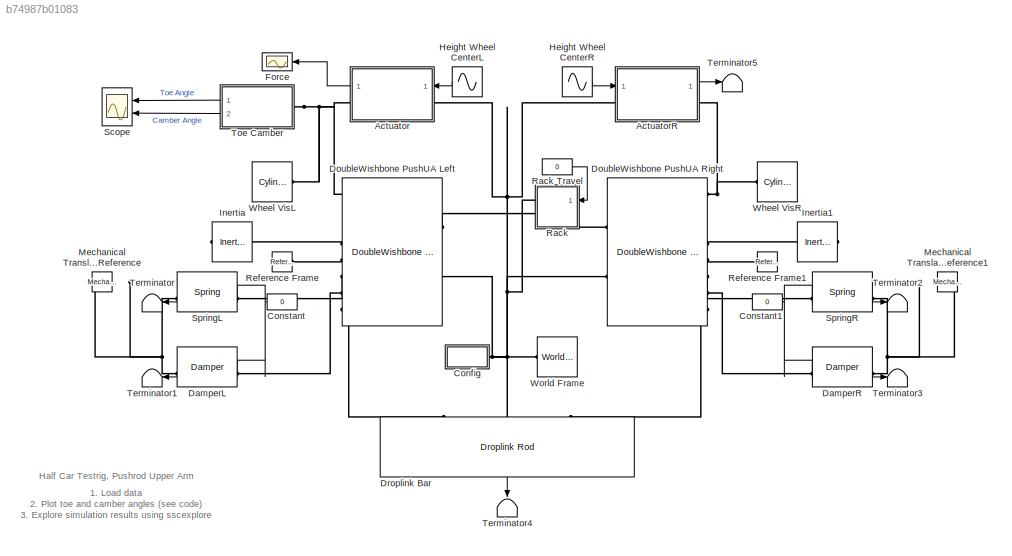
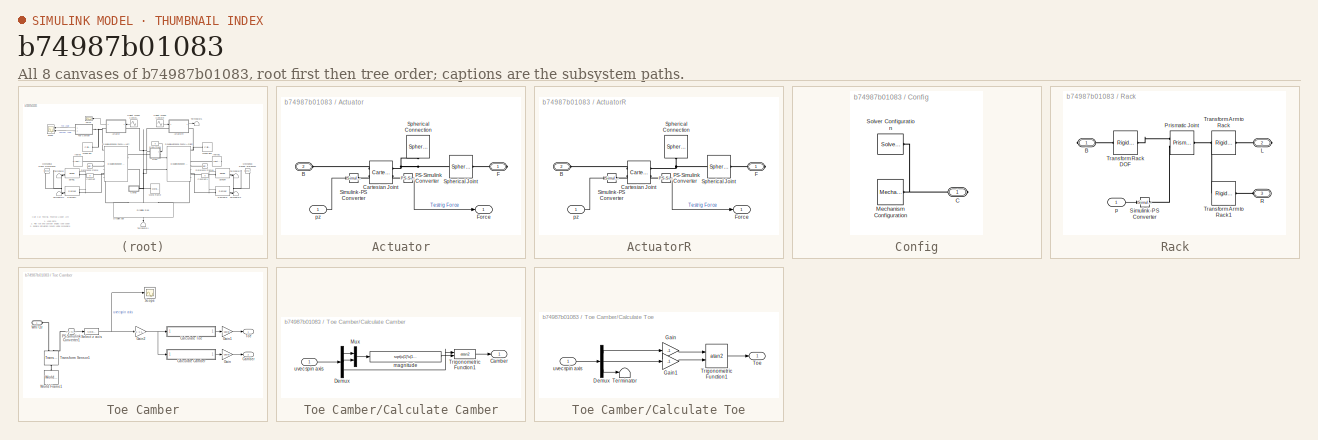
[diagram: thumbnail index - all 8 canvases of the model, root first then tree order]
MODEL slx_b74987b01083
KIND model
CONFIG AbsTol = 1e-3
CONFIG EnableMultiTasking = on
CONFIG FixedStep = auto
CONFIG MaxStep = auto
CONFIG MinStep = auto
CONFIG PostLoadFcn = Linkage = VDatabase.Linkage.DoubleWishbonePushUA_FSAE_Achilles_f;\nDamper = VDatabase.Damper.FSAE_Achilles_Linear_A1;\nSpring  = VDatabase.Spring.FSAE_Achilles_Linear_A1;\nAntiRollBar = VDatabase.AntiRollBar.DroplinkRod_FSAE_Achilles_f;\nInitLinkage = Init.Axle1;\n\nVisual = sm_car_param_visual('fsae');
CONFIG RelTol = 1e-3
CONFIG SampleTimeConstraint = Unconstrained
CONFIG SolverName = ode23t
CONFIG StartTime = 0.0
CONFIG StopTime = 10.0
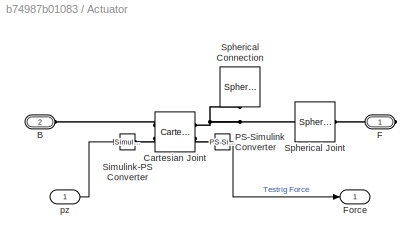
BLOCK [SubSystem] Actuator
  Ports = [1, 1, 0, 0, 0, 1, 1]
  RequestExecContextInheritance = off
BLOCK [PMIOPort] Actuator/B
  Port = 2
  Side = Left
BLOCK [Reference] Actuator/Cartesian Joint  REF=sm_lib/Joints/Cartesian
Joint
  Ports = [0, 0, 0, 0, 0, 2, 2]
  SourceBlock = sm_lib/Joints/Cartesian\nJoint
  SourceProductBaseCode = MS
  SourceType = Cartesian\nJoint
BLOCK [PMIOPort] Actuator/F
  Side = Right
BLOCK [Outport] Actuator/Force
  VectorParamsAs1DForOutWhenUnconnected = off
BLOCK [Reference] Actuator/PS-Simulink Converter  REF=nesl_utility/PS-Simulink
Converter
  Ports = [0, 1, 0, 0, 0, 1]
  SourceBlock = nesl_utility/PS-Simulink\nConverter
  SourceProductBaseCode = SS,PW,VE
  SourceType = PS-Simulink\nConverter
BLOCK [Reference] Actuator/Simulink-PS Converter  REF=nesl_utility/Simulink-PS
Converter
  Ports = [1, 0, 0, 0, 0, 0, 1]
  SourceBlock = nesl_utility/Simulink-PS\nConverter
  SourceProductBaseCode = SS,PW,VE
  SourceType = Simulink-PS\nConverter
BLOCK [Reference] Actuator/Spherical Connection  REF=sm_lib/Body Elements/Spherical Solid
  NameLocation = left
  Ports = [0, 0, 0, 0, 0, 0, 1]
  SourceBlock = sm_lib/Body Elements/Spherical Solid
  SourceProductBaseCode = MS
  SourceType = Spherical Solid
BLOCK [Reference] Actuator/Spherical Joint  REF=sm_lib/Joints/Spherical
Joint
  Ports = [0, 0, 0, 0, 0, 1, 1]
  SourceBlock = sm_lib/Joints/Spherical\nJoint
  SourceProductBaseCode = MS
  SourceType = Spherical\nJoint
BLOCK [Inport] Actuator/pz
BLOCK [SubSystem] ActuatorR
  Ports = [1, 1, 0, 0, 0, 1, 1]
  RequestExecContextInheritance = off
BLOCK [PMIOPort] ActuatorR/B
  Port = 2
  Side = Left
BLOCK [Reference] ActuatorR/Cartesian Joint  REF=sm_lib/Joints/Cartesian
Joint
  Ports = [0, 0, 0, 0, 0, 2, 2]
  SourceBlock = sm_lib/Joints/Cartesian\nJoint
  SourceProductBaseCode = MS
  SourceType = Cartesian\nJoint
BLOCK [PMIOPort] ActuatorR/F
  Side = Right
BLOCK [Outport] ActuatorR/Force
  VectorParamsAs1DForOutWhenUnconnected = off
BLOCK [Reference] ActuatorR/PS-Simulink Converter  REF=nesl_utility/PS-Simulink
Converter
  Ports = [0, 1, 0, 0, 0, 1]
  SourceBlock = nesl_utility/PS-Simulink\nConverter
  SourceProductBaseCode = SS,PW,VE
  SourceType = PS-Simulink\nConverter
BLOCK [Reference] ActuatorR/Simulink-PS Converter  REF=nesl_utility/Simulink-PS
Converter
  Ports = [1, 0, 0, 0, 0, 0, 1]
  SourceBlock = nesl_utility/Simulink-PS\nConverter
  SourceProductBaseCode = SS,PW,VE
  SourceType = Simulink-PS\nConverter
BLOCK [Reference] ActuatorR/Spherical Connection  REF=sm_lib/Body Elements/Spherical Solid
  NameLocation = left
  Ports = [0, 0, 0, 0, 0, 0, 1]
  SourceBlock = sm_lib/Body Elements/Spherical Solid
  SourceProductBaseCode = MS
  SourceType = Spherical Solid
BLOCK [Reference] ActuatorR/Spherical Joint  REF=sm_lib/Joints/Spherical
Joint
  Ports = [0, 0, 0, 0, 0, 1, 1]
  SourceBlock = sm_lib/Joints/Spherical\nJoint
  SourceProductBaseCode = MS
  SourceType = Spherical\nJoint
BLOCK [Inport] ActuatorR/pz
BLOCK [SubSystem] Config
  Ports = [0, 0, 0, 0, 0, 0, 1]
  RequestExecContextInheritance = off
BLOCK [PMIOPort] Config/C
  Side = Right
BLOCK [Reference] Config/Mechanism Configuration  REF=sm_lib/Utilities/Mechanism
Configuration
  Ports = [0, 0, 0, 0, 0, 0, 1]
  SourceBlock = sm_lib/Utilities/Mechanism\nConfiguration
  SourceProductBaseCode = MS
  SourceType = Mechanism\nConfiguration
BLOCK [Reference] Config/Solver Configuration  REF=nesl_utility/Solver
Configuration
  Ports = [0, 0, 0, 0, 0, 0, 1]
  SourceBlock = nesl_utility/Solver\nConfiguration
  SourceProductBaseCode = SS,PW,VE
  SourceType = Solver\nConfiguration
BLOCK [Constant] Constant
  Value = 0
BLOCK [Constant] Constant1
  Value = 0
BLOCK [Reference] DamperL  REF=Damper_Basics/Damper
  AttributesFormatString = %<ActiveVariant>
  Ports = [1, 1, 0, 0, 0, 1, 1]
  SourceBlock = Damper_Basics/Damper
  SourceType = Variants for Damper
BLOCK [Reference] DamperR  REF=Damper_Basics/Damper
  AttributesFormatString = %<ActiveVariant>
  Ports = [1, 1, 0, 0, 0, 1, 1]
  SourceBlock = Damper_Basics/Damper
  SourceType = Variants for Damper
BLOCK [Reference] DoubleWishbone PushUA Left  REF=Linkage_DW_PushUA/DoubleWishbone PushUA
  Ports = [0, 0, 0, 0, 0, 8, 2]
  SourceBlock = Linkage_DW_PushUA/DoubleWishbone PushUA
  SourceType = Double-Wishbone Suspension, Pushrod on Upper Arm, No Steer
BLOCK [Reference] DoubleWishbone PushUA Right  REF=Linkage_DW_PushUA/DoubleWishbone PushUA
  Ports = [0, 0, 0, 0, 0, 8, 2]
  SourceBlock = Linkage_DW_PushUA/DoubleWishbone PushUA
  SourceType = Double-Wishbone Suspension, Pushrod on Upper Arm, No Steer
BLOCK [Reference] Droplink Bar  REF=AntiRollBar_Droplink_Rod/Droplink
Rod
  NameLocation = left
  Ports = [0, 1, 0, 0, 0, 3]
  SourceBlock = AntiRollBar_Droplink_Rod/Droplink\nRod
  SourceType = Anti-Roll Bar with Droplink Connection
BLOCK [Scope] Force
  Floating = off
  NameLocation = top
  NumInputPorts = 1
  Ports = [1]
  ScopeSpecificationString = Simulink.scopes.TimeScopeBlockCfg('CurrentConfiguration', extmgr.ConfigurationSet(extmgr.Configuration('Core','General UI',true),extmgr.Configuration('Core','Source UI',true),extmgr.Configuration('Sources','WiredSimulink',true,'DataLoggingVariableName','ScopeData1'),extmgr.Configuration('Visuals','Time Domain',true,'SerializedDisplays',{struct('MinYLimReal','3778.08359','MaxYLimReal','16995.53068'...<+1414ch>
BLOCK [Sin] Height Wheel CenterL
  Amplitude = 0.03
  Bias = Linkage.Upright.sWheelCentre.Value(3)
  Frequency = 10/(2*pi)
  NameLocation = top
  Ports = [0, 1]
  SampleTime = 0
BLOCK [Sin] Height Wheel CenterR
  Amplitude = 0.03
  Bias = Linkage.Upright.sWheelCentre.Value(3)
  Frequency = 10/(2*pi)*2
  NameLocation = top
  Ports = [0, 1]
  SampleTime = 0
BLOCK [Reference] Inertia  REF=fl_lib/Mechanical/Rotational Elements/Inertia
  NameLocation = top
  Ports = [0, 0, 0, 0, 0, 1]
  SourceBlock = fl_lib/Mechanical/Rotational Elements/Inertia
  SourceProductBaseCode = PW,SS,VE
  SourceType = Inertia
BLOCK [Reference] Inertia1  REF=fl_lib/Mechanical/Rotational Elements/Inertia
  NameLocation = top
  Ports = [0, 0, 0, 0, 0, 1]
  SourceBlock = fl_lib/Mechanical/Rotational Elements/Inertia
  SourceProductBaseCode = PW,SS,VE
  SourceType = Inertia
BLOCK [Reference] Mechanical Translational Reference  REF=fl_lib/Mechanical/Translational
Elements/Mechanical
Translational
Reference
  NameLocation = top
  Ports = [0, 0, 0, 0, 0, 1]
  SourceBlock = fl_lib/Mechanical/Translational\nElements/Mechanical\nTranslational\nReference
  SourceProductBaseCode = PW,SS,VE
  SourceType = Mechanical\nTranslational\nReference
BLOCK [Reference] Mechanical Translational Reference1  REF=fl_lib/Mechanical/Translational
Elements/Mechanical
Translational
Reference
  NameLocation = top
  Ports = [0, 0, 0, 0, 0, 1]
  SourceBlock = fl_lib/Mechanical/Translational\nElements/Mechanical\nTranslational\nReference
  SourceProductBaseCode = PW,SS,VE
  SourceType = Mechanical\nTranslational\nReference
BLOCK [SubSystem] Rack
  Ports = [1, 0, 0, 0, 0, 1, 2]
  RequestExecContextInheritance = off
BLOCK [Constant] Rack Travel
  NameLocation = top
  Value = 0
BLOCK [PMIOPort] Rack/B
  Side = Right
BLOCK [PMIOPort] Rack/L
  Port = 2
  Side = Right
BLOCK [Reference] Rack/Prismatic Joint  REF=sm_lib/Joints/Prismatic
Joint
  Ports = [0, 0, 0, 0, 0, 2, 1]
  SourceBlock = sm_lib/Joints/Prismatic\nJoint
  SourceProductBaseCode = MS
  SourceType = Prismatic\nJoint
BLOCK [PMIOPort] Rack/R
  Port = 3
  Side = Left
BLOCK [Reference] Rack/Simulink-PS Converter  REF=nesl_utility/Simulink-PS
Converter
  Ports = [1, 0, 0, 0, 0, 0, 1]
  SourceBlock = nesl_utility/Simulink-PS\nConverter
  SourceProductBaseCode = SS,PW,VE
  SourceType = Simulink-PS\nConverter
BLOCK [Reference] Rack/Transform Arm to Rack  REF=sm_lib/Frames and
Transforms/Rigid
Transform
  Ports = [0, 0, 0, 0, 0, 1, 1]
  SourceBlock = sm_lib/Frames and\nTransforms/Rigid\nTransform
  SourceProductBaseCode = MS
  SourceType = Rigid\nTransform
BLOCK [Reference] Rack/Transform Arm to Rack1  REF=sm_lib/Frames and
Transforms/Rigid
Transform
  Ports = [0, 0, 0, 0, 0, 1, 1]
  SourceBlock = sm_lib/Frames and\nTransforms/Rigid\nTransform
  SourceProductBaseCode = MS
  SourceType = Rigid\nTransform
BLOCK [Reference] Rack/Transform Rack DOF  REF=sm_lib/Frames and
Transforms/Rigid
Transform
  Ports = [0, 0, 0, 0, 0, 1, 1]
  SourceBlock = sm_lib/Frames and\nTransforms/Rigid\nTransform
  SourceProductBaseCode = MS
  SourceType = Rigid\nTransform
BLOCK [Inport] Rack/p
BLOCK [Reference] Reference Frame  REF=sm_lib/Frames and
Transforms/Reference
Frame
  Ports = [0, 0, 0, 0, 0, 0, 1]
  SourceBlock = sm_lib/Frames and\nTransforms/Reference\nFrame
  SourceProductBaseCode = MS
  SourceType = Reference\nFrame
BLOCK [Reference] Reference Frame1  REF=sm_lib/Frames and
Transforms/Reference
Frame
  Ports = [0, 0, 0, 0, 0, 0, 1]
  SourceBlock = sm_lib/Frames and\nTransforms/Reference\nFrame
  SourceProductBaseCode = MS
  SourceType = Reference\nFrame
BLOCK [Scope] Scope
  Floating = off
  NumInputPorts = 2
  Ports = [2]
  ScopeSpecificationString = Simulink.scopes.TimeScopeBlockCfg('CurrentConfiguration', extmgr.ConfigurationSet(extmgr.Configuration('Core','General UI',true),extmgr.Configuration('Core','Source UI',true),extmgr.Configuration('Sources','WiredSimulink',true,'DataLoggingVariableName','ScopeData2'),extmgr.Configuration('Visuals','Time Domain',true,'SerializedDisplays',{struct('MinYLimReal','-0.02186','MaxYLimReal','0.11887','YLab...<+2084ch>
BLOCK [Reference] SpringL  REF=Spring_Basics/Spring
  AttributesFormatString = %<ActiveVariant>
  Ports = [1, 1, 0, 0, 0, 1, 1]
  SourceBlock = Spring_Basics/Spring
  SourceType = Variants for Spring
BLOCK [Reference] SpringR  REF=Spring_Basics/Spring
  AttributesFormatString = %<ActiveVariant>
  Ports = [1, 1, 0, 0, 0, 1, 1]
  SourceBlock = Spring_Basics/Spring
  SourceType = Variants for Spring
BLOCK [Terminator] Terminator
BLOCK [Terminator] Terminator1
BLOCK [Terminator] Terminator2
BLOCK [Terminator] Terminator3
BLOCK [Terminator] Terminator4
  NameLocation = left
BLOCK [Terminator] Terminator5
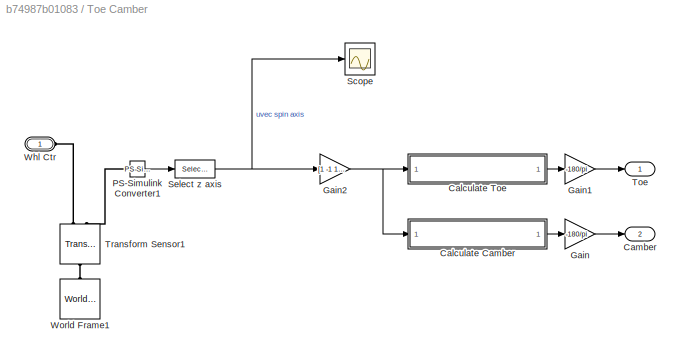
BLOCK [SubSystem] Toe Camber
  Ports = [0, 2, 0, 0, 0, 1]
  RequestExecContextInheritance = off
BLOCK [SubSystem] Toe Camber/Calculate Camber
  Ports = [1, 1]
  RequestExecContextInheritance = off
BLOCK [Outport] Toe Camber/Calculate Camber/Camber
  VectorParamsAs1DForOutWhenUnconnected = off
BLOCK [Demux] Toe Camber/Calculate Camber/Demux
  Outputs = 3
  Ports = [1, 3]
BLOCK [Mux] Toe Camber/Calculate Camber/Mux
  DisplayOption = bar
  Inputs = 2
  Ports = [2, 1]
BLOCK [Trigonometry] Toe Camber/Calculate Camber/Trigonometric Function1
  Operator = atan2
  Ports = [2, 1]
BLOCK [Fcn] Toe Camber/Calculate Camber/magnitude
  Expr = sqrt(u(1)*u(1)+u(2)*u(2))
BLOCK [Inport] Toe Camber/Calculate Camber/uvec spin axis
BLOCK [SubSystem] Toe Camber/Calculate Toe
  Ports = [1, 1]
  RequestExecContextInheritance = off
BLOCK [Demux] Toe Camber/Calculate Toe/Demux
  Outputs = 3
  Ports = [1, 3]
BLOCK [Gain] Toe Camber/Calculate Toe/Gain
  Gain = -1
BLOCK [Gain] Toe Camber/Calculate Toe/Gain1
  Gain = -1
BLOCK [Terminator] Toe Camber/Calculate Toe/Terminator
BLOCK [Outport] Toe Camber/Calculate Toe/Toe
  VectorParamsAs1DForOutWhenUnconnected = off
BLOCK [Trigonometry] Toe Camber/Calculate Toe/Trigonometric Function1
  Operator = atan2
  Ports = [2, 1]
BLOCK [Inport] Toe Camber/Calculate Toe/uvec spin axis
BLOCK [Outport] Toe Camber/Camber
  Port = 2
  VectorParamsAs1DForOutWhenUnconnected = off
BLOCK [Gain] Toe Camber/Gain
  Gain = -180/pi
BLOCK [Gain] Toe Camber/Gain1
  Gain = -180/pi
BLOCK [Gain] Toe Camber/Gain2
  Gain = [1 -1 1]'
BLOCK [Reference] Toe Camber/PS-Simulink Converter1  REF=nesl_utility/PS-Simulink
Converter
  Ports = [0, 1, 0, 0, 0, 1]
  SourceBlock = nesl_utility/PS-Simulink\nConverter
  SourceProductBaseCode = SS,PW,VE
  SourceType = PS-Simulink\nConverter
BLOCK [Scope] Toe Camber/Scope
  Floating = off
  NumInputPorts = 1
  Ports = [1]
  ScopeSpecificationString = Simulink.scopes.TimeScopeBlockCfg('CurrentConfiguration', extmgr.ConfigurationSet(extmgr.Configuration('Core','General UI',true),extmgr.Configuration('Core','Source UI',true),extmgr.Configuration('Sources','WiredSimulink',true,'DataLoggingVariableName','ScopeData1'),extmgr.Configuration('Visuals','Time Domain',true,'SerializedDisplays',{struct('MinYLimReal','-0.23575','MaxYLimReal','1.13731','YLab...<+1388ch>
BLOCK [Selector] Toe Camber/Select z axis
  IndexOptions = Index vector (dialog),Index vector (dialog)
  Indices = [1 2 3],3
  InputPortWidth = 2
  NumberOfDimensions = 2
  OutputSizes = 1,1
  Ports = [1, 1]
BLOCK [Outport] Toe Camber/Toe
  VectorParamsAs1DForOutWhenUnconnected = off
BLOCK [Reference] Toe Camber/Transform Sensor1  REF=sm_lib/Frames and
Transforms/Transform
Sensor
  NameLocation = right
  Ports = [0, 0, 0, 0, 0, 1, 2]
  SourceBlock = sm_lib/Frames and\nTransforms/Transform\nSensor
  SourceProductBaseCode = MS
  SourceType = Transform\nSensor
BLOCK [PMIOPort] Toe Camber/Whl Ctr
  NameLocation = top
  Side = Left
BLOCK [Reference] Toe Camber/World Frame1  REF=sm_lib/Frames and
Transforms/World Frame
  NameLocation = right
  Ports = [0, 0, 0, 0, 0, 0, 1]
  SourceBlock = sm_lib/Frames and\nTransforms/World Frame
  SourceProductBaseCode = MS
  SourceType = World Frame
BLOCK [Reference] Wheel VisL  REF=sm_lib/Body Elements/Cylindrical Solid
  Ports = [0, 0, 0, 0, 0, 0, 1]
  SourceBlock = sm_lib/Body Elements/Cylindrical Solid
  SourceProductBaseCode = MS
  SourceType = Cylindrical Solid
BLOCK [Reference] Wheel VisR  REF=sm_lib/Body Elements/Cylindrical Solid
  Ports = [0, 0, 0, 0, 0, 0, 1]
  SourceBlock = sm_lib/Body Elements/Cylindrical Solid
  SourceProductBaseCode = MS
  SourceType = Cylindrical Solid
BLOCK [Reference] World Frame  REF=sm_lib/Frames and
Transforms/World Frame
  Ports = [0, 0, 0, 0, 0, 0, 1]
  SourceBlock = sm_lib/Frames and\nTransforms/World Frame
  SourceProductBaseCode = MS
  SourceType = World Frame
ANNOTATION (root): 1. Load data 2. Plot toe and camber angles ( see code ) 3. Explore simulation results using sscexplore
ANNOTATION (root): Half Car Testrig, Pushrod Upper Arm
LINE Actuator/PS-Simulink Converter:1 -> Actuator/Force:1
LINE Actuator/pz:1 -> Actuator/Simulink-PS Converter:1
LINE Actuator:1 -> Force:1
LINE ActuatorR/PS-Simulink Converter:1 -> ActuatorR/Force:1
LINE ActuatorR/pz:1 -> ActuatorR/Simulink-PS Converter:1
LINE ActuatorR:1 -> Terminator5:1
NET Constant1:1 -> DamperR:1, SpringR:1
NET Constant:1 -> DamperL:1, SpringL:1
LINE DamperL:1 -> Terminator1:1
LINE DamperR:1 -> Terminator3:1
LINE Droplink Bar:1 -> Terminator4:1
LINE Height Wheel CenterL:1 -> Actuator:1
LINE Height Wheel CenterR:1 -> ActuatorR:1
LINE Rack Travel:1 -> Rack:1
LINE Rack/p:1 -> Rack/Simulink-PS Converter:1
LINE SpringL:1 -> Terminator:1
LINE SpringR:1 -> Terminator2:1
LINE Toe Camber/Calculate Camber/Demux:1 -> Toe Camber/Calculate Camber/Mux:1
LINE Toe Camber/Calculate Camber/Demux:2 -> Toe Camber/Calculate Camber/Mux:2
LINE Toe Camber/Calculate Camber/Demux:3 -> Toe Camber/Calculate Camber/Trigonometric Function1:1
LINE Toe Camber/Calculate Camber/Mux:1 -> Toe Camber/Calculate Camber/magnitude:1
LINE Toe Camber/Calculate Camber/Trigonometric Function1:1 -> Toe Camber/Calculate Camber/Camber:1
LINE Toe Camber/Calculate Camber/magnitude:1 -> Toe Camber/Calculate Camber/Trigonometric Function1:2
LINE Toe Camber/Calculate Camber/uvec spin axis:1 -> Toe Camber/Calculate Camber/Demux:1
LINE Toe Camber/Calculate Camber:1 -> Toe Camber/Gain:1
LINE Toe Camber/Calculate Toe/Demux:1 -> Toe Camber/Calculate Toe/Gain:1
LINE Toe Camber/Calculate Toe/Demux:2 -> Toe Camber/Calculate Toe/Gain1:1
LINE Toe Camber/Calculate Toe/Demux:3 -> Toe Camber/Calculate Toe/Terminator:1
LINE Toe Camber/Calculate Toe/Gain1:1 -> Toe Camber/Calculate Toe/Trigonometric Function1:2
LINE Toe Camber/Calculate Toe/Gain:1 -> Toe Camber/Calculate Toe/Trigonometric Function1:1
LINE Toe Camber/Calculate Toe/Trigonometric Function1:1 -> Toe Camber/Calculate Toe/Toe:1
LINE Toe Camber/Calculate Toe/uvec spin axis:1 -> Toe Camber/Calculate Toe/Demux:1
LINE Toe Camber/Calculate Toe:1 -> Toe Camber/Gain1:1
LINE Toe Camber/Gain1:1 -> Toe Camber/Toe:1
NET Toe Camber/Gain2:1 -> Toe Camber/Calculate Camber:1, Toe Camber/Calculate Toe:1
LINE Toe Camber/Gain:1 -> Toe Camber/Camber:1
LINE Toe Camber/PS-Simulink Converter1:1 -> Toe Camber/Select z axis:1
NET Toe Camber/Select z axis:1 -> Toe Camber/Gain2:1, Toe Camber/Scope:1
LINE Toe Camber:1 -> Scope:1
LINE Toe Camber:2 -> Scope:2
PLINE Actuator/B:RConn1 -- Actuator/Cartesian Joint:LConn1
PLINE Actuator/Cartesian Joint:LConn2 -- Actuator/Simulink-PS Converter:RConn1
PNET net1: Actuator/Cartesian Joint:RConn1 -- Actuator/Spherical Connection:RConn1 -- Actuator/Spherical Joint:LConn1
PLINE Actuator/Cartesian Joint:RConn2 -- Actuator/PS-Simulink Converter:LConn1
PLINE Actuator/F:RConn1 -- Actuator/Spherical Joint:RConn1
PNET net2: Actuator:LConn1 -- ActuatorR:LConn1 -- Config:RConn1 -- DoubleWishbone PushUA Left:RConn2 -- DoubleWishbone PushUA Right:RConn2 -- Droplink Bar:LConn2 -- Rack:RConn1 -- World Frame:RConn1
PNET net3: Actuator:RConn1 -- DoubleWishbone PushUA Left:LConn1 -- Toe Camber:LConn1 -- Wheel VisL:RConn1
PLINE ActuatorR/B:RConn1 -- ActuatorR/Cartesian Joint:LConn1
PLINE ActuatorR/Cartesian Joint:LConn2 -- ActuatorR/Simulink-PS Converter:RConn1
PNET net4: ActuatorR/Cartesian Joint:RConn1 -- ActuatorR/Spherical Connection:RConn1 -- ActuatorR/Spherical Joint:LConn1
PLINE ActuatorR/Cartesian Joint:RConn2 -- ActuatorR/PS-Simulink Converter:LConn1
PLINE ActuatorR/F:RConn1 -- ActuatorR/Spherical Joint:RConn1
PNET net5: ActuatorR:RConn1 -- DoubleWishbone PushUA Right:LConn1 -- Wheel VisR:RConn1
PNET net6: Config/C:RConn1 -- Config/Mechanism Configuration:RConn1 -- Config/Solver Configuration:RConn1
PLINE DamperL:LConn1 -- DoubleWishbone PushUA Left:LConn7
PNET net7: DamperL:RConn1 -- Mechanical Translational Reference:LConn1 -- SpringL:RConn1
PLINE DamperR:LConn1 -- DoubleWishbone PushUA Right:LConn7
PNET net8: DamperR:RConn1 -- Mechanical Translational Reference1:LConn1 -- SpringR:RConn1
PLINE DoubleWishbone PushUA Left:LConn4 -- Inertia:LConn1
PLINE DoubleWishbone PushUA Left:LConn5 -- Reference Frame:RConn1
PLINE DoubleWishbone PushUA Left:LConn6 -- SpringL:LConn1
PLINE DoubleWishbone PushUA Left:LConn8 -- Droplink Bar:LConn1
PLINE DoubleWishbone PushUA Left:RConn1 -- Rack:RConn2
PLINE DoubleWishbone PushUA Right:LConn4 -- Inertia1:LConn1
PLINE DoubleWishbone PushUA Right:LConn5 -- Reference Frame1:RConn1
PLINE DoubleWishbone PushUA Right:LConn6 -- SpringR:LConn1
PLINE DoubleWishbone PushUA Right:LConn8 -- Droplink Bar:LConn3
PLINE DoubleWishbone PushUA Right:RConn1 -- Rack:LConn1
PLINE Rack/B:RConn1 -- Rack/Transform Rack DOF:LConn1
PLINE Rack/L:RConn1 -- Rack/Transform Arm to Rack:LConn1
PLINE Rack/Prismatic Joint:LConn1 -- Rack/Transform Rack DOF:RConn1
PLINE Rack/Prismatic Joint:LConn2 -- Rack/Simulink-PS Converter:RConn1
PNET net9: Rack/Prismatic Joint:RConn1 -- Rack/Transform Arm to Rack1:RConn1 -- Rack/Transform Arm to Rack:RConn1
PLINE Rack/R:RConn1 -- Rack/Transform Arm to Rack1:LConn1
PLINE Toe Camber/PS-Simulink Converter1:LConn1 -- Toe Camber/Transform Sensor1:RConn2
PLINE Toe Camber/Transform Sensor1:LConn1 -- Toe Camber/World Frame1:RConn1
PLINE Toe Camber/Transform Sensor1:RConn1 -- Toe Camber/Whl Ctr:RConn1
note: NET lines group one-source signal fan-out (src -> all destinations, sorted); 1:1 wires keep LINE; PNET lines group multi-terminal physical nets as a canonical sorted terminal list (undirected conserving connections); 2-terminal nets keep the pairwise PLINE form
